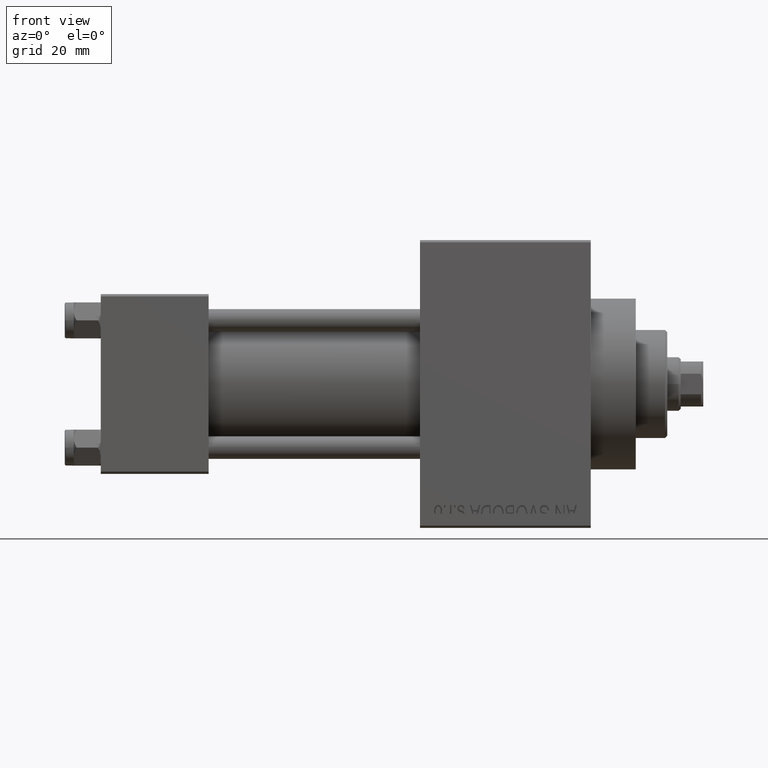
[diagram: clean part render]
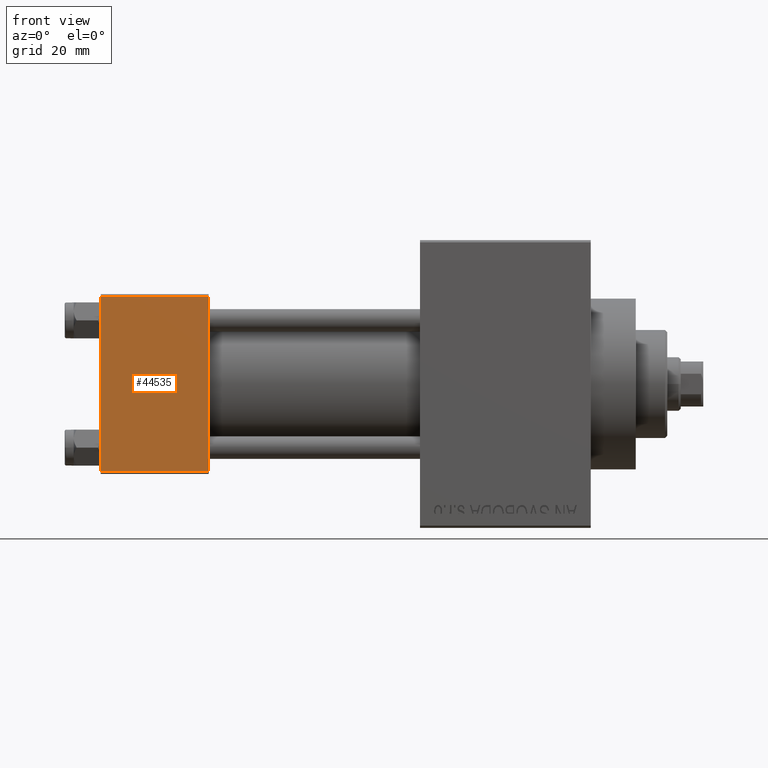
[diagram: same view with one face highlighted and labeled with its STEP entity id]
A machine part, front view. The second image highlights one B-rep face of the part: STEP entity #44535.
In plain terms, the highlighted planar face has unit normal (0, 1, 0).
Its self-contained STEP definition (entity closure, byte-faithful):
#787 = EDGE_CURVE ( 'NONE', #18776, #44242, #35017, .T. ) ;
#836 = CARTESIAN_POINT ( 'NONE',  ( 24.00000000000000000, -20.00000000000000000, -19.49999999999999645 ) ) ;
#1089 = CARTESIAN_POINT ( 'NONE',  ( 0.000000000000000000, -20.00000000000000355, 19.99999999999998934 ) ) ;
#1813 = DIRECTION ( 'NONE',  ( -1.000000000000000000, 0.000000000000000000, 0.000000000000000000 ) ) ;
#2007 = EDGE_CURVE ( 'NONE', #10951, #18776, #2309, .T. ) ;
#2309 = LINE ( 'NONE', #5767, #23598 ) ;
#4033 = LINE ( 'NONE', #45385, #36861 ) ;
#4407 = ORIENTED_EDGE ( 'NONE', *, *, #36614, .F. ) ;
#5250 = VECTOR ( 'NONE', #15933, 1000.000000000000000 ) ;
#5628 = ORIENTED_EDGE ( 'NONE', *, *, #2007, .T. ) ;
#5767 = CARTESIAN_POINT ( 'NONE',  ( 24.00000000000000000, -20.00000000000000355, 19.49999999999998224 ) ) ;
#8017 = CARTESIAN_POINT ( 'NONE',  ( 24.00000000000000000, -20.00000000000000355, 19.99999999999998934 ) ) ;
#9239 = DIRECTION ( 'NONE',  ( 0.000000000000000000, 8.673617379884036705E-17, -1.000000000000000000 ) ) ;
#10322 = VERTEX_POINT ( 'NONE', #39021 ) ;
#10951 = VERTEX_POINT ( 'NONE', #27303 ) ;
#11444 = DIRECTION ( 'NONE',  ( 0.000000000000000000, 8.673617379884036705E-17, -1.000000000000000000 ) ) ;
#11685 = AXIS2_PLACEMENT_3D ( 'NONE', #8017, #23132, #41201 ) ;
#11710 = FACE_OUTER_BOUND ( 'NONE', #29035, .T. ) ;
#15933 = DIRECTION ( 'NONE',  ( 1.000000000000000000, 0.000000000000000000, 0.000000000000000000 ) ) ;
#18776 = VERTEX_POINT ( 'NONE', #29920 ) ;
#19036 = CARTESIAN_POINT ( 'NONE',  ( 0.000000000000000000, -20.00000000000000000, -19.49999999999999645 ) ) ;
#23132 = DIRECTION ( 'NONE',  ( -0.000000000000000000, 1.000000000000000000, 8.673617379884036705E-17 ) ) ;
#23598 = VECTOR ( 'NONE', #1813, 1000.000000000000000 ) ;
#25328 = ORIENTED_EDGE ( 'NONE', *, *, #37969, .T. ) ;
#27303 = CARTESIAN_POINT ( 'NONE',  ( 24.00000000000000000, -20.00000000000000355, 19.49999999999998224 ) ) ;
#29035 = EDGE_LOOP ( 'NONE', ( #42536, #25328, #4407, #5628 ) ) ;
#29920 = CARTESIAN_POINT ( 'NONE',  ( 0.000000000000000000, -20.00000000000000355, 19.49999999999998224 ) ) ;
#32454 = VECTOR ( 'NONE', #9239, 1000.000000000000000 ) ;
#34759 = LINE ( 'NONE', #836, #5250 ) ;
#35017 = LINE ( 'NONE', #1089, #32454 ) ;
#36614 = EDGE_CURVE ( 'NONE', #10951, #10322, #4033, .T. ) ;
#36861 = VECTOR ( 'NONE', #11444, 1000.000000000000000 ) ;
#37738 = PLANE ( 'NONE',  #11685 ) ;
#37969 = EDGE_CURVE ( 'NONE', #44242, #10322, #34759, .T. ) ;
#39021 = CARTESIAN_POINT ( 'NONE',  ( 24.00000000000000000, -20.00000000000000000, -19.49999999999999645 ) ) ;
#41201 = DIRECTION ( 'NONE',  ( 0.000000000000000000, -8.673617379884036705E-17, 1.000000000000000000 ) ) ;
#42536 = ORIENTED_EDGE ( 'NONE', *, *, #787, .T. ) ;
#44242 = VERTEX_POINT ( 'NONE', #19036 ) ;
#44535 = ADVANCED_FACE ( 'NONE', ( #11710 ), #37738, .F. ) ;
#45385 = CARTESIAN_POINT ( 'NONE',  ( 24.00000000000000000, -20.00000000000000355, 19.99999999999998934 ) ) ;